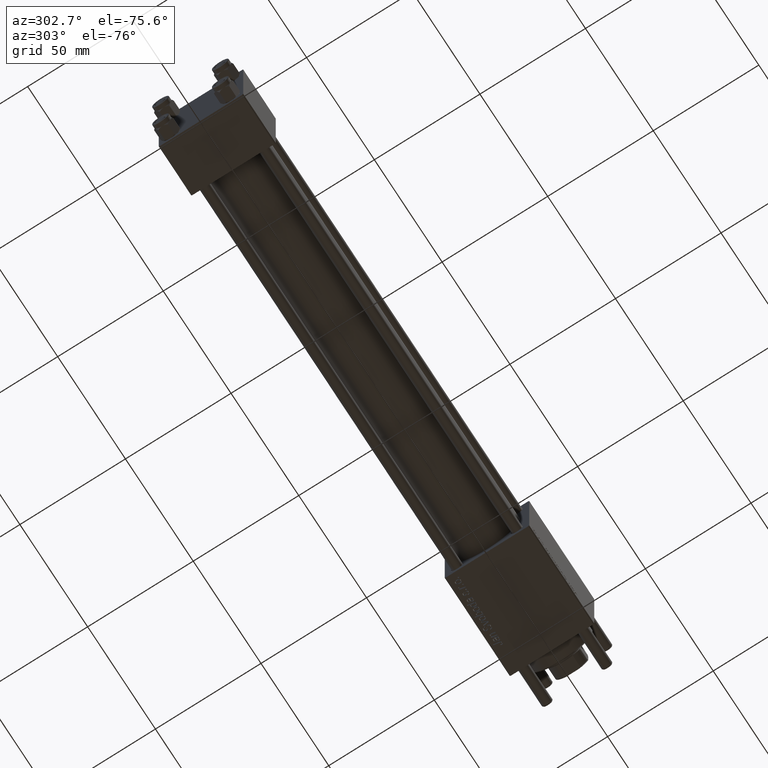
[diagram: clean part render]
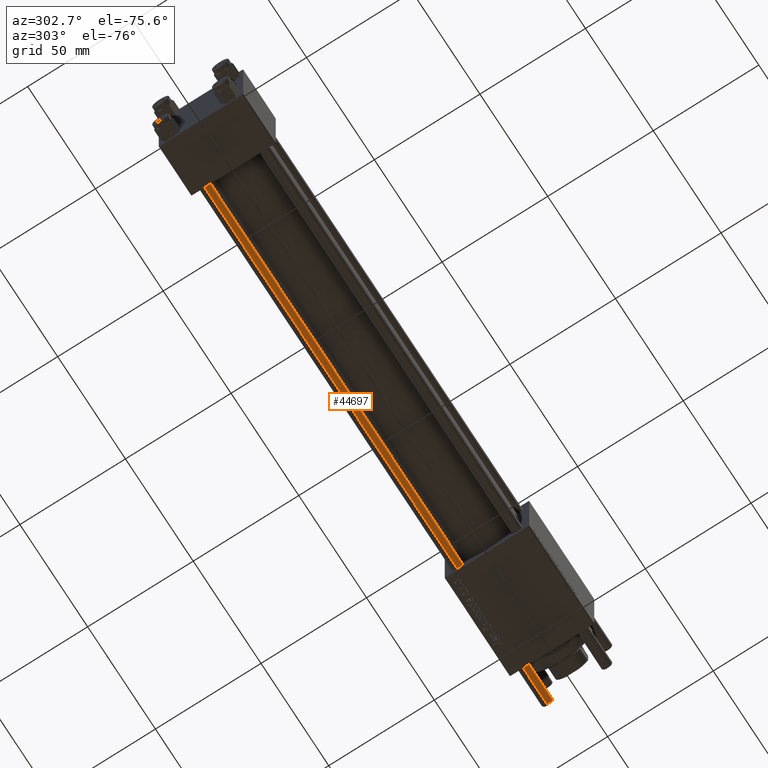
[diagram: same view with one face highlighted and labeled with its STEP entity id]
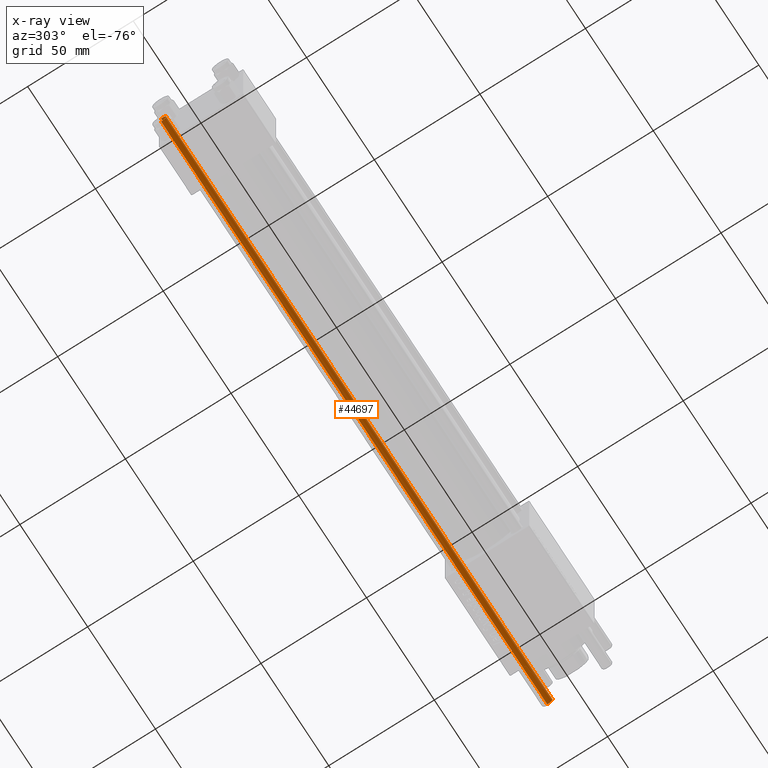
[diagram: x-ray of the same camera — body ghosted, the highlighted face saturated]
A machine part, auxiliary view. The second image highlights one B-rep face of the part: STEP entity #44697.
The next image is the same camera in x-ray: the body ghosted, the highlighted face saturated — about 0% of this face is hidden behind the body in this view.
In plain terms, the highlighted cylindrical surface (edge-blend (fillet) strip) has radius 2.5 mm, axis along (-1, -0, 0).
Its self-contained STEP definition (entity closure, byte-faithful):
#178 = CARTESIAN_POINT ( 'NONE',  ( -2.500000000000000000, 0.000000000000000000, 286.0000000000000000 ) ) ;
#3826 = CARTESIAN_POINT ( 'NONE',  ( -2.500000000000000000, 0.000000000000000000, 285.4999999999999432 ) ) ;
#4297 = ORIENTED_EDGE ( 'NONE', *, *, #41757, .T. ) ;
#5346 = VECTOR ( 'NONE', #6195, 1000.000000000000000 ) ;
#5837 = DIRECTION ( 'NONE',  ( -0.000000000000000000, -0.000000000000000000, -1.000000000000000000 ) ) ;
#6195 = DIRECTION ( 'NONE',  ( -0.000000000000000000, -0.000000000000000000, -1.000000000000000000 ) ) ;
#6531 = EDGE_CURVE ( 'NONE', #50531, #54869, #9602, .T. ) ;
#7810 = AXIS2_PLACEMENT_3D ( 'NONE', #34150, #16100, #42755 ) ;
#8958 = ORIENTED_EDGE ( 'NONE', *, *, #35634, .T. ) ;
#9602 = CIRCLE ( 'NONE', #7810, 2.500000000000000000 ) ;
#12315 = CYLINDRICAL_SURFACE ( 'NONE', #38380, 2.500000000000000000 ) ;
#15504 = CARTESIAN_POINT ( 'NONE',  ( 2.500000000000000000, 3.061616997868383141E-16, 0.4999999999999449329 ) ) ;
#16100 = DIRECTION ( 'NONE',  ( 0.000000000000000000, 0.000000000000000000, -1.000000000000000000 ) ) ;
#18319 = DIRECTION ( 'NONE',  ( -1.000000000000000000, 0.000000000000000000, 0.000000000000000000 ) ) ;
#18411 = EDGE_LOOP ( 'NONE', ( #56735, #22347, #4297, #8958 ) ) ;
#18723 = CARTESIAN_POINT ( 'NONE',  ( 2.500000000000000000, 3.061616997868383141E-16, 285.4999999999999432 ) ) ;
#20900 = CARTESIAN_POINT ( 'NONE',  ( -2.500000000000000000, 0.000000000000000000, 0.4999999999999449329 ) ) ;
#21956 = LINE ( 'NONE', #178, #5346 ) ;
#22347 = ORIENTED_EDGE ( 'NONE', *, *, #6531, .T. ) ;
#24573 = AXIS2_PLACEMENT_3D ( 'NONE', #41548, #45000, #54180 ) ;
#30846 = VECTOR ( 'NONE', #5837, 1000.000000000000000 ) ;
#34114 = EDGE_CURVE ( 'NONE', #50531, #52019, #45101, .T. ) ;
#34150 = CARTESIAN_POINT ( 'NONE',  ( 0.000000000000000000, 0.000000000000000000, 285.4999999999999432 ) ) ;
#35514 = CIRCLE ( 'NONE', #24573, 2.500000000000000000 ) ;
#35634 = EDGE_CURVE ( 'NONE', #55673, #52019, #35514, .T. ) ;
#37661 = FACE_OUTER_BOUND ( 'NONE', #18411, .T. ) ;
#38380 = AXIS2_PLACEMENT_3D ( 'NONE', #47307, #42998, #18319 ) ;
#41548 = CARTESIAN_POINT ( 'NONE',  ( 0.000000000000000000, 0.000000000000000000, 0.4999999999999449329 ) ) ;
#41757 = EDGE_CURVE ( 'NONE', #54869, #55673, #21956, .T. ) ;
#42755 = DIRECTION ( 'NONE',  ( 1.000000000000000000, 0.000000000000000000, 0.000000000000000000 ) ) ;
#42998 = DIRECTION ( 'NONE',  ( -0.000000000000000000, -0.000000000000000000, -1.000000000000000000 ) ) ;
#44697 = ADVANCED_FACE ( 'NONE', ( #37661 ), #12315, .T. ) ;
#44823 = CARTESIAN_POINT ( 'NONE',  ( 2.500000000000000000, 3.061616997868383141E-16, 286.0000000000000000 ) ) ;
#45000 = DIRECTION ( 'NONE',  ( -0.000000000000000000, -0.000000000000000000, 1.000000000000000000 ) ) ;
#45101 = LINE ( 'NONE', #44823, #30846 ) ;
#47307 = CARTESIAN_POINT ( 'NONE',  ( 0.000000000000000000, 0.000000000000000000, 286.0000000000000000 ) ) ;
#50531 = VERTEX_POINT ( 'NONE', #18723 ) ;
#52019 = VERTEX_POINT ( 'NONE', #15504 ) ;
#54180 = DIRECTION ( 'NONE',  ( 1.000000000000000000, 0.000000000000000000, 0.000000000000000000 ) ) ;
#54869 = VERTEX_POINT ( 'NONE', #3826 ) ;
#55673 = VERTEX_POINT ( 'NONE', #20900 ) ;
#56735 = ORIENTED_EDGE ( 'NONE', *, *, #34114, .F. ) ;